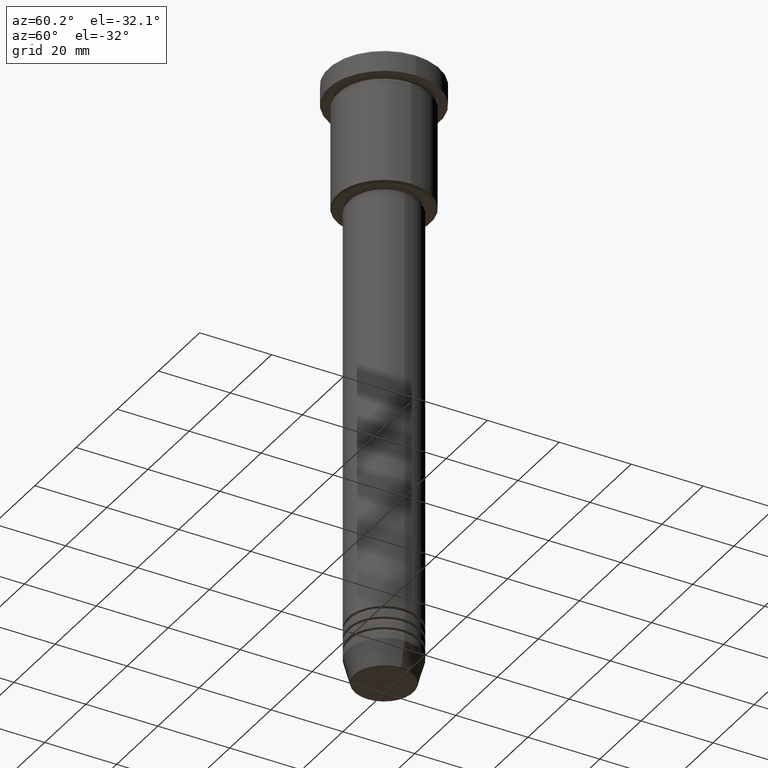
[diagram: clean part render]
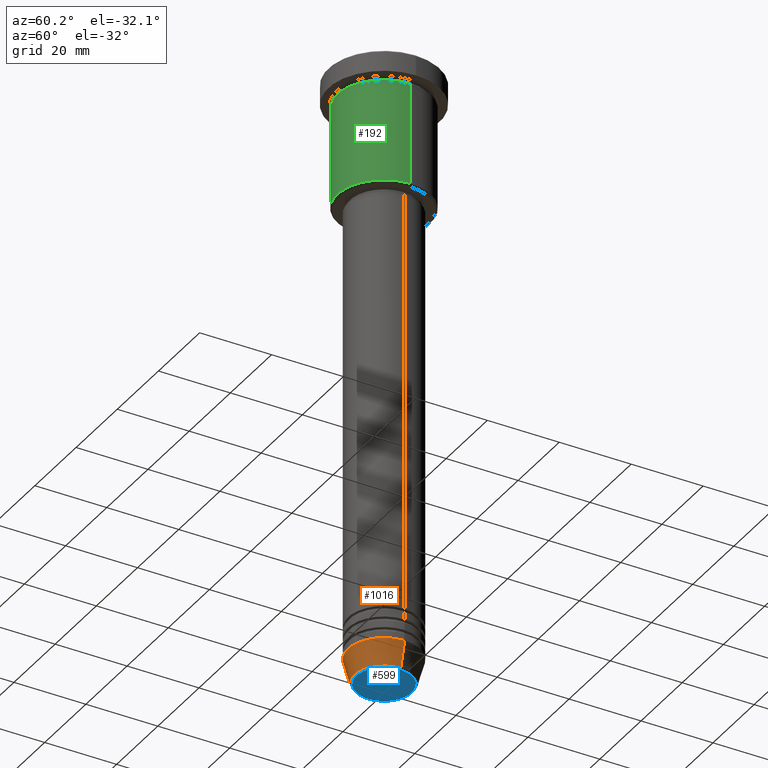
[diagram: same view with three faces highlighted in distinct colors, each labeled with its STEP entity id]
A machine part, auxiliary view with three faces highlighted in distinct colors.
Their STEP definitions:

[orange] entity #1016 — the highlighted conical surface has half-angle 15 deg.
#7 = AXIS2_PLACEMENT_3D ( 'NONE', #728, #354, #371 ) ;
#29 = EDGE_CURVE ( 'NONE', #482, #519, #146, .T. ) ;
#30 = VERTEX_POINT ( 'NONE', #322 ) ;
#40 = CARTESIAN_POINT ( 'NONE',  ( 0.000000000000000000, 0.000000000000000000, -164.0000000000000000 ) ) ;
#117 = CARTESIAN_POINT ( 'NONE',  ( -10.00000000000000000, 1.224646799147353256E-15, -164.0000000000000000 ) ) ;
#146 = LINE ( 'NONE', #514, #878 ) ;
#177 = CARTESIAN_POINT ( 'NONE',  ( -10.00000000000000000, 1.224646799147353256E-15, -164.0000000000000000 ) ) ;
#197 = VERTEX_POINT ( 'NONE', #117 ) ;
#225 = AXIS2_PLACEMENT_3D ( 'NONE', #592, #1023, #1115 ) ;
#226 = DIRECTION ( 'NONE',  ( -0.000000000000000000, -0.000000000000000000, 1.000000000000000000 ) ) ;
#240 = AXIS2_PLACEMENT_3D ( 'NONE', #40, #226, #963 ) ;
#296 = EDGE_CURVE ( 'NONE', #197, #519, #342, .T. ) ;
#322 = CARTESIAN_POINT ( 'NONE',  ( -8.223655072137198374, 1.115877042642912448E-15, -170.6294095225512422 ) ) ;
#342 = CIRCLE ( 'NONE', #240, 10.00000000000000000 ) ;
#354 = DIRECTION ( 'NONE',  ( -0.000000000000000000, -0.000000000000000000, 1.000000000000000000 ) ) ;
#371 = DIRECTION ( 'NONE',  ( 1.000000000000000000, 0.000000000000000000, 0.000000000000000000 ) ) ;
#375 = FACE_OUTER_BOUND ( 'NONE', #461, .T. ) ;
#461 = EDGE_LOOP ( 'NONE', ( #846, #505, #540, #635 ) ) ;
#482 = VERTEX_POINT ( 'NONE', #1144 ) ;
#501 = EDGE_CURVE ( 'NONE', #30, #482, #695, .T. ) ;
#505 = ORIENTED_EDGE ( 'NONE', *, *, #501, .T. ) ;
#514 = CARTESIAN_POINT ( 'NONE',  ( 10.00000000000000000, 0.000000000000000000, -164.0000000000000000 ) ) ;
#519 = VERTEX_POINT ( 'NONE', #1020 ) ;
#532 = EDGE_CURVE ( 'NONE', #30, #197, #640, .T. ) ;
#540 = ORIENTED_EDGE ( 'NONE', *, *, #29, .T. ) ;
#592 = CARTESIAN_POINT ( 'NONE',  ( 0.000000000000000000, 0.000000000000000000, -164.0000000000000000 ) ) ;
#635 = ORIENTED_EDGE ( 'NONE', *, *, #296, .F. ) ;
#640 = LINE ( 'NONE', #177, #901 ) ;
#695 = CIRCLE ( 'NONE', #7, 8.223655072137198374 ) ;
#728 = CARTESIAN_POINT ( 'NONE',  ( 0.000000000000000000, 0.000000000000000000, -170.6294095225512422 ) ) ;
#825 = DIRECTION ( 'NONE',  ( -0.2588190451025213501, 3.169619151431772337E-17, 0.9659258262890680902 ) ) ;
#846 = ORIENTED_EDGE ( 'NONE', *, *, #532, .F. ) ;
#878 = VECTOR ( 'NONE', #886, 1000.000000000000000 ) ;
#886 = DIRECTION ( 'NONE',  ( 0.2588190451025213501, 0.000000000000000000, 0.9659258262890680902 ) ) ;
#901 = VECTOR ( 'NONE', #825, 1000.000000000000000 ) ;
#918 = CONICAL_SURFACE ( 'NONE', #225, 10.00000000000000000, 0.2617993877991500740 ) ;
#963 = DIRECTION ( 'NONE',  ( 1.000000000000000000, 0.000000000000000000, 0.000000000000000000 ) ) ;
#1016 = ADVANCED_FACE ( 'NONE', ( #375 ), #918, .T. ) ;
#1020 = CARTESIAN_POINT ( 'NONE',  ( 10.00000000000000000, 0.000000000000000000, -164.0000000000000000 ) ) ;
#1023 = DIRECTION ( 'NONE',  ( -0.000000000000000000, -0.000000000000000000, 1.000000000000000000 ) ) ;
#1115 = DIRECTION ( 'NONE',  ( 1.000000000000000000, 0.000000000000000000, 0.000000000000000000 ) ) ;
#1144 = CARTESIAN_POINT ( 'NONE',  ( 8.223655072137198374, 0.000000000000000000, -170.6294095225512422 ) ) ;

[blue] entity #599 — the highlighted planar face has unit normal (0, -0, 1).
#22 = EDGE_CURVE ( 'NONE', #413, #137, #754, .T. ) ;
#136 = CARTESIAN_POINT ( 'NONE',  ( 7.740692158992664496, 0.000000000000000000, -170.9999999999999716 ) ) ;
#137 = VERTEX_POINT ( 'NONE', #439 ) ;
#164 = CARTESIAN_POINT ( 'NONE',  ( 0.000000000000000000, 0.000000000000000000, -170.9999999999999716 ) ) ;
#213 = EDGE_CURVE ( 'NONE', #137, #413, #1070, .T. ) ;
#237 = ORIENTED_EDGE ( 'NONE', *, *, #213, .T. ) ;
#249 = ORIENTED_EDGE ( 'NONE', *, *, #22, .T. ) ;
#251 = FACE_OUTER_BOUND ( 'NONE', #263, .T. ) ;
#263 = EDGE_LOOP ( 'NONE', ( #249, #237 ) ) ;
#292 = AXIS2_PLACEMENT_3D ( 'NONE', #164, #903, #768 ) ;
#303 = CARTESIAN_POINT ( 'NONE',  ( 0.000000000000000000, 0.000000000000000000, -170.9999999999999716 ) ) ;
#395 = CARTESIAN_POINT ( 'NONE',  ( 0.000000000000000000, 0.000000000000000000, -170.9999999999999716 ) ) ;
#413 = VERTEX_POINT ( 'NONE', #136 ) ;
#439 = CARTESIAN_POINT ( 'NONE',  ( -7.740692158992664496, 9.775343368540048996E-16, -170.9999999999999716 ) ) ;
#512 = AXIS2_PLACEMENT_3D ( 'NONE', #395, #771, #1046 ) ;
#599 = ADVANCED_FACE ( 'NONE', ( #251 ), #631, .F. ) ;
#631 = PLANE ( 'NONE',  #292 ) ;
#754 = CIRCLE ( 'NONE', #1168, 7.740692158992664496 ) ;
#768 = DIRECTION ( 'NONE',  ( 1.000000000000000000, 0.000000000000000000, 0.000000000000000000 ) ) ;
#771 = DIRECTION ( 'NONE',  ( 0.000000000000000000, 0.000000000000000000, -1.000000000000000000 ) ) ;
#903 = DIRECTION ( 'NONE',  ( 0.000000000000000000, -0.000000000000000000, 1.000000000000000000 ) ) ;
#972 = DIRECTION ( 'NONE',  ( 1.000000000000000000, 0.000000000000000000, 0.000000000000000000 ) ) ;
#1046 = DIRECTION ( 'NONE',  ( 1.000000000000000000, 0.000000000000000000, 0.000000000000000000 ) ) ;
#1061 = DIRECTION ( 'NONE',  ( 0.000000000000000000, 0.000000000000000000, -1.000000000000000000 ) ) ;
#1070 = CIRCLE ( 'NONE', #512, 7.740692158992664496 ) ;
#1168 = AXIS2_PLACEMENT_3D ( 'NONE', #303, #1061, #972 ) ;

[green] entity #192 — the highlighted cylindrical surface (partial cylindrical patch) has radius 13 mm, axis along (-0, -0, 1).
#60 = DIRECTION ( 'NONE',  ( -1.000000000000000000, 0.000000000000000000, 0.000000000000000000 ) ) ;
#64 = DIRECTION ( 'NONE',  ( -0.000000000000000000, -0.000000000000000000, 1.000000000000000000 ) ) ;
#156 = DIRECTION ( 'NONE',  ( -0.000000000000000000, -0.000000000000000000, 1.000000000000000000 ) ) ;
#163 = CARTESIAN_POINT ( 'NONE',  ( -13.00000000000000000, 1.592040838891559095E-15, -35.49999999999997868 ) ) ;
#179 = EDGE_CURVE ( 'NONE', #299, #615, #1178, .T. ) ;
#192 = ADVANCED_FACE ( 'NONE', ( #991 ), #773, .T. ) ;
#212 = ORIENTED_EDGE ( 'NONE', *, *, #1113, .F. ) ;
#247 = LINE ( 'NONE', #800, #697 ) ;
#299 = VERTEX_POINT ( 'NONE', #537 ) ;
#315 = CARTESIAN_POINT ( 'NONE',  ( 0.000000000000000000, 0.000000000000000000, 0.000000000000000000 ) ) ;
#350 = CARTESIAN_POINT ( 'NONE',  ( 13.00000000000000000, 0.000000000000000000, 0.000000000000000000 ) ) ;
#361 = DIRECTION ( 'NONE',  ( 1.000000000000000000, 0.000000000000000000, 0.000000000000000000 ) ) ;
#399 = ORIENTED_EDGE ( 'NONE', *, *, #988, .F. ) ;
#472 = EDGE_CURVE ( 'NONE', #806, #299, #1072, .T. ) ;
#475 = CARTESIAN_POINT ( 'NONE',  ( 0.000000000000000000, 0.000000000000000000, -6.999999999999995559 ) ) ;
#510 = DIRECTION ( 'NONE',  ( -0.000000000000000000, -0.000000000000000000, 1.000000000000000000 ) ) ;
#537 = CARTESIAN_POINT ( 'NONE',  ( 13.00000000000000000, 0.000000000000000000, -35.49999999999997868 ) ) ;
#606 = CARTESIAN_POINT ( 'NONE',  ( 13.00000000000000000, 0.000000000000000000, -6.999999999999995559 ) ) ;
#615 = VERTEX_POINT ( 'NONE', #606 ) ;
#697 = VECTOR ( 'NONE', #64, 1000.000000000000000 ) ;
#770 = DIRECTION ( 'NONE',  ( 1.000000000000000000, 0.000000000000000000, 0.000000000000000000 ) ) ;
#773 = CYLINDRICAL_SURFACE ( 'NONE', #929, 13.00000000000000000 ) ;
#800 = CARTESIAN_POINT ( 'NONE',  ( -13.00000000000000000, 1.592040838891559095E-15, 0.000000000000000000 ) ) ;
#806 = VERTEX_POINT ( 'NONE', #163 ) ;
#822 = ORIENTED_EDGE ( 'NONE', *, *, #179, .T. ) ;
#847 = DIRECTION ( 'NONE',  ( -0.000000000000000000, -0.000000000000000000, 1.000000000000000000 ) ) ;
#856 = VECTOR ( 'NONE', #1036, 1000.000000000000000 ) ;
#929 = AXIS2_PLACEMENT_3D ( 'NONE', #315, #510, #361 ) ;
#933 = CIRCLE ( 'NONE', #1173, 13.00000000000000000 ) ;
#978 = AXIS2_PLACEMENT_3D ( 'NONE', #982, #156, #60 ) ;
#982 = CARTESIAN_POINT ( 'NONE',  ( 0.000000000000000000, 0.000000000000000000, -35.49999999999997868 ) ) ;
#983 = CARTESIAN_POINT ( 'NONE',  ( -13.00000000000000000, 1.592040838891559095E-15, -6.999999999999995559 ) ) ;
#988 = EDGE_CURVE ( 'NONE', #1172, #615, #933, .T. ) ;
#991 = FACE_OUTER_BOUND ( 'NONE', #1066, .T. ) ;
#1036 = DIRECTION ( 'NONE',  ( -0.000000000000000000, -0.000000000000000000, 1.000000000000000000 ) ) ;
#1066 = EDGE_LOOP ( 'NONE', ( #212, #1165, #822, #399 ) ) ;
#1072 = CIRCLE ( 'NONE', #978, 13.00000000000000000 ) ;
#1113 = EDGE_CURVE ( 'NONE', #806, #1172, #247, .T. ) ;
#1165 = ORIENTED_EDGE ( 'NONE', *, *, #472, .T. ) ;
#1172 = VERTEX_POINT ( 'NONE', #983 ) ;
#1173 = AXIS2_PLACEMENT_3D ( 'NONE', #475, #847, #770 ) ;
#1178 = LINE ( 'NONE', #350, #856 ) ;